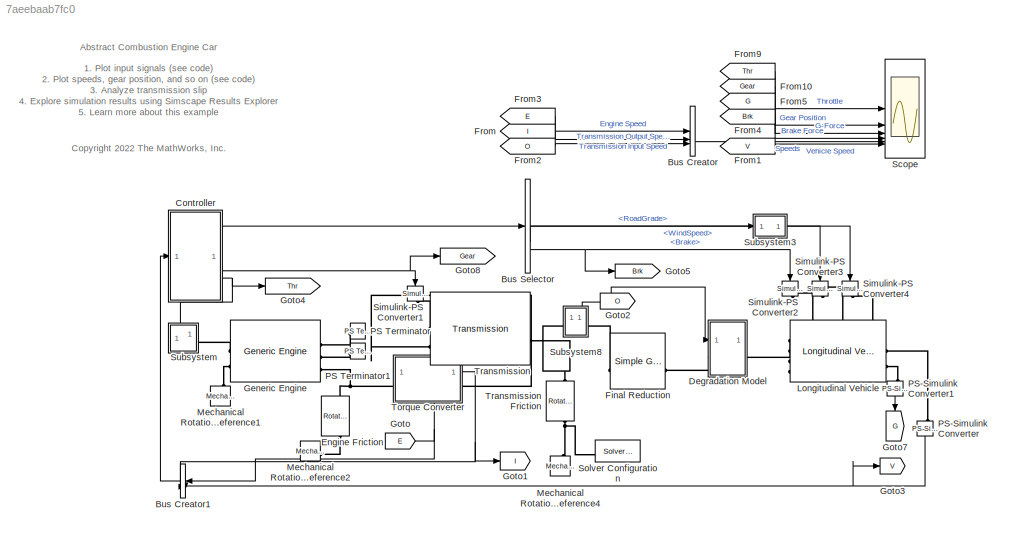
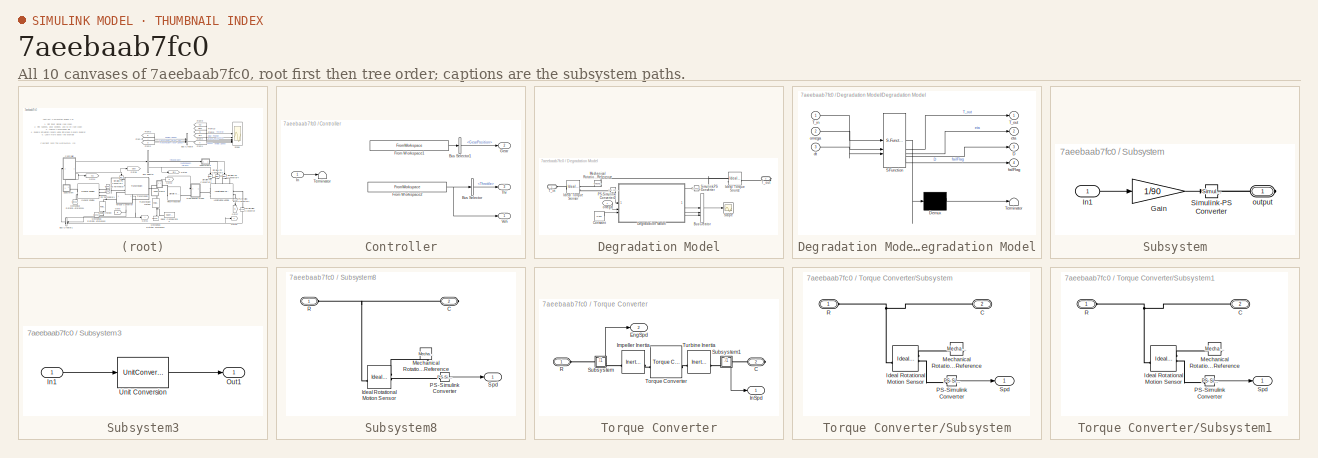
[diagram: thumbnail index - all 10 canvases of the model, root first then tree order]
MODEL slx_7aeebaab7fc0
KIND model
CONFIG AbsTol = 1e-3
CONFIG EnableMultiTasking = off
CONFIG FixedStep = 0.001
CONFIG MaxStep = 0.001
CONFIG MinStep = auto
CONFIG PreLoadFcn = AbstractCombustionEngineCarSetup
CONFIG RelTol = 1e-3
CONFIG SampleTimeConstraint = Unconstrained
CONFIG SolverName = FixedStepAuto
CONFIG StartTime = 0.0
CONFIG StopTime = 1200
BLOCK [BusCreator] Bus Creator
  DisplayOption = bar
  InheritFromInputs = on
  Inputs = 3
BLOCK [BusCreator] Bus Creator1
  DisplayOption = bar
  InheritFromInputs = on
  Inputs = 3
  NameLocation = top
BLOCK [BusSelector] Bus Selector
  OutputSignals = WindSpeed,RoadGrade,Brake
BLOCK [SubSystem] Controller
  NameLocation = top
BLOCK [BusSelector] Controller/Bus Selector
  OutputSignals = Throttle
BLOCK [BusSelector] Controller/Bus Selector1
  OutputSignals = GearPosition
BLOCK [FromWorkspace] Controller/From Workspace1
  AttributesFormatString = Interpolate: %<Interpolate>
  Interpolate = off
  NameLocation = left
  OutputAfterFinalValue = Holding final value
  VariableName = FromWS1_Signal
BLOCK [FromWorkspace] Controller/From Workspace2
  AttributesFormatString = Interpolate: %<Interpolate>
  NameLocation = left
  OutDataTypeStr = Bus: AbstractCombustionEngineCar_Bus
  OutputAfterFinalValue = Holding final value
  VariableName = FromWS2_Signal
BLOCK [Outport] Controller/Gear
  NameLocation = right
  Port = 2
BLOCK [Inport] Controller/In
BLOCK [Terminator] Controller/Terminator
BLOCK [Outport] Controller/Thr
  NameLocation = right
  Port = 3
BLOCK [Outport] Controller/Veh
  NameLocation = right
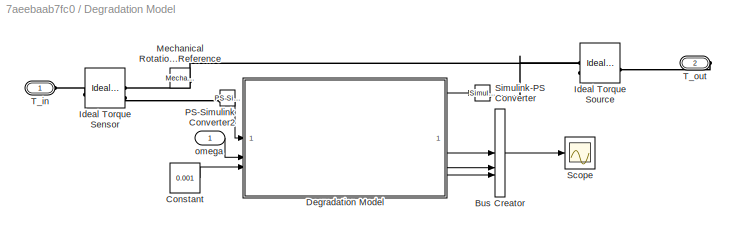
BLOCK [SubSystem] Degradation Model
BLOCK [BusCreator] Degradation Model/Bus Creator
  DisplayOption = bar
  InheritFromInputs = on
  Inputs = 3
BLOCK [Constant] Degradation Model/Constant
  Value = 0.001
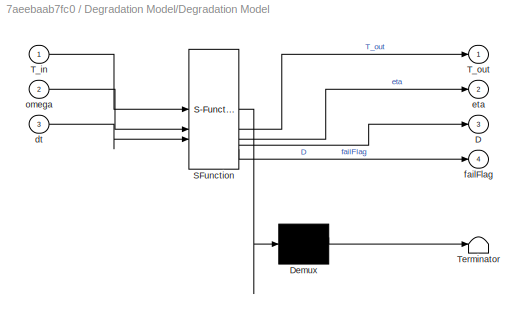
BLOCK [SubSystem] Degradation Model/Degradation Model
  ErrorFcn = Stateflow.Translate.translate
  PermitHierarchicalResolution = ExplicitOnly
  SFBlockType = MATLAB Function
  ShowPortLabels = FromPortBlockName
  TreatAsAtomicUnit = on
BLOCK [Demux] Degradation Model/Degradation Model/ Demux 
  Outputs = 1
BLOCK [S-Function] Degradation Model/Degradation Model/ SFunction 
  EnableBusSupport = off
  FunctionName = sf_sfun
  PortCounts = [3 5]
  SFcnIsStateOwnerBlock = off
  SFunctionDeploymentMode = off
  Tag = Stateflow S-Function 2
BLOCK [Terminator] Degradation Model/Degradation Model/ Terminator 
BLOCK [Outport] Degradation Model/Degradation Model/D
  Port = 3
BLOCK [Inport] Degradation Model/Degradation Model/T_in
BLOCK [Outport] Degradation Model/Degradation Model/T_out
BLOCK [Inport] Degradation Model/Degradation Model/dt
  Port = 3
BLOCK [Outport] Degradation Model/Degradation Model/eta
  Port = 2
BLOCK [Outport] Degradation Model/Degradation Model/failFlag
  Port = 4
BLOCK [Inport] Degradation Model/Degradation Model/omega
  Port = 2
BLOCK [Reference] Degradation Model/Ideal Torque Sensor  REF=fl_lib/Mechanical/Mechanical Sensors/Ideal Torque Sensor
  SourceBlock = fl_lib/Mechanical/Mechanical Sensors/Ideal Torque Sensor
  SourceType = Ideal Torque Sensor
BLOCK [Reference] Degradation Model/Ideal Torque Source  REF=fl_lib/Mechanical/Mechanical Sources/Ideal Torque Source
  SourceBlock = fl_lib/Mechanical/Mechanical Sources/Ideal Torque Source
  SourceType = Ideal Torque Source
BLOCK [Reference] Degradation Model/Mechanical Rotational Reference  REF=fl_lib/Mechanical/Rotational Elements/Mechanical
Rotational Reference
  NameLocation = top
  SourceBlock = fl_lib/Mechanical/Rotational Elements/Mechanical\nRotational Reference
  SourceType = Mechanical\nRotational Reference
BLOCK [Reference] Degradation Model/PS-Simulink Converter2  REF=nesl_utility/PS-Simulink
Converter
  SourceBlock = nesl_utility/PS-Simulink\nConverter
  SourceType = PS-Simulink\nConverter
BLOCK [Scope] Degradation Model/Scope
  DataLoggingVariableName = ScopeData1
  Floating = off
  GraphicalSettings = {"GraphicalSettings":{"LegacySettings":true,"Style":{"Style":{"PlotType":"Auto"}}}}
  NumInputPorts = 1
  WasSavedAsWebScope = on
BLOCK [Reference] Degradation Model/Simulink-PS Converter  REF=nesl_utility/Simulink-PS
Converter
  SourceBlock = nesl_utility/Simulink-PS\nConverter
  SourceType = Simulink-PS\nConverter
BLOCK [PMIOPort] Degradation Model/T_in
  Side = Left
BLOCK [PMIOPort] Degradation Model/T_out
  NameLocation = top
  Port = 2
  Side = Right
BLOCK [Inport] Degradation Model/omega
BLOCK [Reference] Engine Friction  REF=fl_lib/Mechanical/Rotational Elements/Rotational Damper
  NameLocation = left
  SourceBlock = fl_lib/Mechanical/Rotational Elements/Rotational Damper
  SourceType = Rotational Damper
BLOCK [Reference] Final Reduction  REF=sdl_lib/Gears/Simple Gear
  AttributesFormatString = %<ratio>
  SourceBlock = sdl_lib/Gears/Simple Gear
  SourceType = Simple Gear
BLOCK [From] From
  GotoTag = I
  NameLocation = left
BLOCK [From] From1
  GotoTag = V
  NameLocation = left
BLOCK [From] From10
  GotoTag = Gear
  NameLocation = left
BLOCK [From] From2
  GotoTag = O
  NameLocation = left
BLOCK [From] From3
  GotoTag = E
  NameLocation = left
BLOCK [From] From4
  GotoTag = Brk
BLOCK [From] From5
  GotoTag = G
BLOCK [From] From9
  GotoTag = Thr
  NameLocation = left
BLOCK [Reference] Generic Engine  REF=sdl_lib/Engines & Motors/Generic Engine
  SourceBlock = sdl_lib/Engines & Motors/Generic Engine
  SourceType = Generic Engine
BLOCK [Goto] Goto
  GotoTag = E
BLOCK [Goto] Goto1
  GotoTag = I
BLOCK [Goto] Goto2
  GotoTag = O
  NameLocation = left
BLOCK [Goto] Goto3
  GotoTag = V
BLOCK [Goto] Goto4
  GotoTag = Thr
BLOCK [Goto] Goto5
  GotoTag = Brk
BLOCK [Goto] Goto7
  GotoTag = G
  NameLocation = left
BLOCK [Goto] Goto8
  GotoTag = Gear
BLOCK [Reference] Longitudinal Vehicle  REF=sdl_lib/Tires & Vehicles/Longitudinal Vehicle
  SourceBlock = sdl_lib/Tires & Vehicles/Longitudinal Vehicle
  SourceType = Longitudinal Vehicle
BLOCK [Reference] Mechanical Rotational Reference1  REF=fl_lib/Mechanical/Rotational Elements/Mechanical
Rotational Reference
  SourceBlock = fl_lib/Mechanical/Rotational Elements/Mechanical\nRotational Reference
  SourceType = Mechanical\nRotational Reference
BLOCK [Reference] Mechanical Rotational Reference2  REF=fl_lib/Mechanical/Rotational Elements/Mechanical
Rotational Reference
  NameLocation = left
  SourceBlock = fl_lib/Mechanical/Rotational Elements/Mechanical\nRotational Reference
  SourceType = Mechanical\nRotational Reference
BLOCK [Reference] Mechanical Rotational Reference4  REF=fl_lib/Mechanical/Rotational Elements/Mechanical
Rotational Reference
  NameLocation = right
  SourceBlock = fl_lib/Mechanical/Rotational Elements/Mechanical\nRotational Reference
  SourceType = Mechanical\nRotational Reference
BLOCK [Reference] PS Terminator  REF=fl_lib/Physical Signals/Sinks/PS Terminator
  SourceBlock = fl_lib/Physical Signals/Sinks/PS Terminator
  SourceType = PS Terminator
BLOCK [Reference] PS Terminator1  REF=fl_lib/Physical Signals/Sinks/PS Terminator
  SourceBlock = fl_lib/Physical Signals/Sinks/PS Terminator
  SourceType = PS Terminator
BLOCK [Reference] PS-Simulink Converter  REF=nesl_utility/PS-Simulink
Converter
  NameLocation = left
  SourceBlock = nesl_utility/PS-Simulink\nConverter
  SourceType = PS-Simulink\nConverter
BLOCK [Reference] PS-Simulink Converter1  REF=nesl_utility/PS-Simulink
Converter
  AttributesFormatString = %<Unit>
  NameLocation = left
  SourceBlock = nesl_utility/PS-Simulink\nConverter
  SourceType = PS-Simulink\nConverter
BLOCK [Scope] Scope
  ActiveDisplayYMaximum = 101.25
  ActiveDisplayYMinimum = -11.25
  Floating = off
  GraphicalSettings = {"GraphicalSettings":{"LegacySettings":true,"Style":{"AxesScalingProperties":{"AxesScaling":"Auto","ShrinkYLimits":false},"Style":{"AxesColor":"[0 0 0]","ChannelNames":["","","","","",""],"ColorOrder":"[1 1 0.0666666666666667;0.0745098039215686 0.623529411764706 1;1 0.411764705882353 0.16078431372549;0.392156862745098 0.831372549019608 0.0745098039215686;0.717647058823529 0.274509803921569 1;0.058...<+573ch>
  LayoutDimensionsString = [3 2]
  MultipleDisplayCache = [{"MaxYLimMag":101.25,"MaxYLimReal":101.25,"MinYLimMag":0,"MinYLimReal":-11.25,"PlotAsMagnitudePhase":false,"ShowGrid":true,"ShowLegend":false,"Title":"%<SignalLabel>","YLabel":""},{"MaxYLimMag":10,"MaxYLimReal":6.625,"MinYLimMag":0,"MinYLimReal":0.375,"PlotAsMagnitudePhase":false,"ShowGrid":true,"ShowLegend":false,"Title":"%<SignalLabel>","YLabel":""},{"MaxYLimMag":4754.86924,"MaxYLimReal":0.4140...<+680ch>
  NumInputPorts = 6
  WasSavedAsWebScope = on
  WindowPosition = [151 803 949 489]
BLOCK [Reference] Simulink-PS Converter1  REF=nesl_utility/Simulink-PS
Converter
  NameLocation = left
  SourceBlock = nesl_utility/Simulink-PS\nConverter
  SourceType = Simulink-PS\nConverter
BLOCK [Reference] Simulink-PS Converter2  REF=nesl_utility/Simulink-PS
Converter
  NameLocation = left
  SourceBlock = nesl_utility/Simulink-PS\nConverter
  SourceType = Simulink-PS\nConverter
BLOCK [Reference] Simulink-PS Converter3  REF=nesl_utility/Simulink-PS
Converter
  NameLocation = left
  SourceBlock = nesl_utility/Simulink-PS\nConverter
  SourceType = Simulink-PS\nConverter
BLOCK [Reference] Simulink-PS Converter4  REF=nesl_utility/Simulink-PS
Converter
  NameLocation = left
  SourceBlock = nesl_utility/Simulink-PS\nConverter
  SourceType = Simulink-PS\nConverter
BLOCK [Reference] Solver Configuration  REF=nesl_utility/Solver
Configuration
  AttributesFormatString = Local solver = %<UseLocalSolver>
  SourceBlock = nesl_utility/Solver\nConfiguration
  SourceType = Solver\nConfiguration
BLOCK [SubSystem] Subsystem
  PortSchema = {"entries":[{"content":{"sides":[{"content":{"connectorIds":[]},"type":"ConnectorPlacement.EquallySpacedRectSide","uuid":"38476285-4b1d-4cfe-b9ba-56388b6e142d"},{"content":{"connectorIds":["RConn1"],"side":"RIGHT"},"type":"ConnectorPlacement.EquallySpacedRectSide","uuid":"ba0e92dd-90b0-4ff2-bfbd-3d18e117ce00"},{"content":{"connectorIds":["In1"],"side":"TOP"},"type":"ConnectorPlacement.EquallySpace...<+242ch>
  ShowPortLabels = none
BLOCK [Gain] Subsystem/Gain
  Gain = 1/90
BLOCK [Inport] Subsystem/In1
BLOCK [Reference] Subsystem/Simulink-PS Converter  REF=nesl_utility/Simulink-PS
Converter
  AttributesFormatString = %<Unit>
  SourceBlock = nesl_utility/Simulink-PS\nConverter
  SourceType = Simulink-PS\nConverter
BLOCK [PMIOPort] Subsystem/output
  Side = Right
BLOCK [SubSystem] Subsystem3
  ShowPortLabels = none
BLOCK [Inport] Subsystem3/In1
BLOCK [Outport] Subsystem3/Out1
BLOCK [UnitConversion] Subsystem3/Unit Conversion
BLOCK [SubSystem] Subsystem8
  PortSchema = {"entries":[{"content":{"sides":[{"content":{"connectorIds":["Out1","LConn1"]},"type":"ConnectorPlacement.EquallySpacedRectSide","uuid":"a87ce211-5ca3-4dba-a83b-da94e949f171"},{"content":{"connectorIds":["RConn1"],"side":"RIGHT"},"type":"ConnectorPlacement.EquallySpacedRectSide","uuid":"788867ba-271d-48ee-bf4b-70614e75db20"},{"content":{"connectorIds":[],"side":"TOP"},"type":"ConnectorPlacement.Eq...<+396ch>
  ShowPortLabels = none
BLOCK [PMIOPort] Subsystem8/C
  Port = 2
  Side = Right
BLOCK [Reference] Subsystem8/Ideal Rotational Motion Sensor  REF=fl_lib/Mechanical/Mechanical Sensors/Ideal Rotational
Motion Sensor
  SourceBlock = fl_lib/Mechanical/Mechanical Sensors/Ideal Rotational\nMotion Sensor
  SourceType = Ideal Rotational\nMotion Sensor
BLOCK [Reference] Subsystem8/Mechanical Rotational Reference  REF=fl_lib/Mechanical/Rotational Elements/Mechanical
Rotational Reference
  NameLocation = left
  SourceBlock = fl_lib/Mechanical/Rotational Elements/Mechanical\nRotational Reference
  SourceType = Mechanical\nRotational Reference
BLOCK [Reference] Subsystem8/PS-Simulink Converter  REF=nesl_utility/PS-Simulink
Converter
  AttributesFormatString = %<Unit>
  SourceBlock = nesl_utility/PS-Simulink\nConverter
  SourceType = PS-Simulink\nConverter
BLOCK [PMIOPort] Subsystem8/R
  Side = Left
BLOCK [Outport] Subsystem8/Spd
  Unit = rpm
BLOCK [SubSystem] Torque Converter
  PortSchema = {"entries":[{"content":{"sides":[{"content":{"connectorIds":["LConn1","Out2"]},"type":"ConnectorPlacement.EquallySpacedRectSide","uuid":"617538e0-3440-487d-b133-1f4231421eb5"},{"content":{"connectorIds":["RConn1","Out1"],"side":"RIGHT"},"type":"ConnectorPlacement.EquallySpacedRectSide","uuid":"0cc25c53-6bfd-4172-944f-9e7138ffc800"},{"content":{"connectorIds":[],"side":"TOP"},"type":"ConnectorPlace...<+403ch>
BLOCK [PMIOPort] Torque Converter/C
  Port = 2
  Side = Right
BLOCK [Outport] Torque Converter/EngSpd
  Port = 2
BLOCK [Reference] Torque Converter/Impeller Inertia  REF=fl_lib/Mechanical/Rotational Elements/Inertia
  NameLocation = top
  SourceBlock = fl_lib/Mechanical/Rotational Elements/Inertia
  SourceType = Inertia
BLOCK [Outport] Torque Converter/InSpd
BLOCK [PMIOPort] Torque Converter/R
  Side = Left
BLOCK [SubSystem] Torque Converter/Subsystem
  PortSchema = {"entries":[{"content":{"sides":[{"content":{"connectorIds":["LConn1"]},"type":"ConnectorPlacement.EquallySpacedRectSide","uuid":"a87ce211-5ca3-4dba-a83b-da94e949f171"},{"content":{"connectorIds":["RConn1"],"side":"RIGHT"},"type":"ConnectorPlacement.EquallySpacedRectSide","uuid":"788867ba-271d-48ee-bf4b-70614e75db20"},{"content":{"connectorIds":["Out1"],"side":"TOP"},"type":"ConnectorPlacement.Equ...<+251ch>
  ShowPortLabels = none
BLOCK [PMIOPort] Torque Converter/Subsystem/C
  Port = 2
  Side = Right
BLOCK [Reference] Torque Converter/Subsystem/Ideal Rotational Motion Sensor  REF=fl_lib/Mechanical/Mechanical Sensors/Ideal Rotational
Motion Sensor
  SourceBlock = fl_lib/Mechanical/Mechanical Sensors/Ideal Rotational\nMotion Sensor
  SourceType = Ideal Rotational\nMotion Sensor
BLOCK [Reference] Torque Converter/Subsystem/Mechanical Rotational Reference  REF=fl_lib/Mechanical/Rotational Elements/Mechanical
Rotational Reference
  NameLocation = top
  SourceBlock = fl_lib/Mechanical/Rotational Elements/Mechanical\nRotational Reference
  SourceType = Mechanical\nRotational Reference
BLOCK [Reference] Torque Converter/Subsystem/PS-Simulink Converter  REF=nesl_utility/PS-Simulink
Converter
  AttributesFormatString = %<Unit>
  SourceBlock = nesl_utility/PS-Simulink\nConverter
  SourceType = PS-Simulink\nConverter
BLOCK [PMIOPort] Torque Converter/Subsystem/R
  Side = Left
BLOCK [Outport] Torque Converter/Subsystem/Spd
  Unit = rpm
BLOCK [SubSystem] Torque Converter/Subsystem1
  PortSchema = {"entries":[{"content":{"sides":[{"content":{"connectorIds":["LConn1"]},"type":"ConnectorPlacement.EquallySpacedRectSide","uuid":"a87ce211-5ca3-4dba-a83b-da94e949f171"},{"content":{"connectorIds":["RConn1"],"side":"RIGHT"},"type":"ConnectorPlacement.EquallySpacedRectSide","uuid":"788867ba-271d-48ee-bf4b-70614e75db20"},{"content":{"connectorIds":[],"side":"TOP"},"type":"ConnectorPlacement.EquallySp...<+395ch>
  ShowPortLabels = none
BLOCK [PMIOPort] Torque Converter/Subsystem1/C
  Port = 2
  Side = Right
BLOCK [Reference] Torque Converter/Subsystem1/Ideal Rotational Motion Sensor  REF=fl_lib/Mechanical/Mechanical Sensors/Ideal Rotational
Motion Sensor
  SourceBlock = fl_lib/Mechanical/Mechanical Sensors/Ideal Rotational\nMotion Sensor
  SourceType = Ideal Rotational\nMotion Sensor
BLOCK [Reference] Torque Converter/Subsystem1/Mechanical Rotational Reference  REF=fl_lib/Mechanical/Rotational Elements/Mechanical
Rotational Reference
  NameLocation = top
  SourceBlock = fl_lib/Mechanical/Rotational Elements/Mechanical\nRotational Reference
  SourceType = Mechanical\nRotational Reference
BLOCK [Reference] Torque Converter/Subsystem1/PS-Simulink Converter  REF=nesl_utility/PS-Simulink
Converter
  AttributesFormatString = %<Unit>
  SourceBlock = nesl_utility/PS-Simulink\nConverter
  SourceType = PS-Simulink\nConverter
BLOCK [PMIOPort] Torque Converter/Subsystem1/R
  Side = Left
BLOCK [Outport] Torque Converter/Subsystem1/Spd
  Unit = rpm
BLOCK [Reference] Torque Converter/Torque Converter  REF=sdl_lib/Couplings & Drives/Torque Converter
  SourceBlock = sdl_lib/Couplings & Drives/Torque Converter
  SourceType = Torque Converter
BLOCK [Reference] Torque Converter/Turbine Inertia  REF=fl_lib/Mechanical/Rotational Elements/Inertia
  NameLocation = top
  SourceBlock = fl_lib/Mechanical/Rotational Elements/Inertia
  SourceType = Inertia
BLOCK [Reference] Transmission  REF=sdl_lib/Gears/Transmission
  NameLocation = top
  SourceBlock = sdl_lib/Gears/Transmission
  SourceType = Transmission
BLOCK [Reference] Transmission Friction  REF=fl_lib/Mechanical/Rotational Elements/Rotational Damper
  NameLocation = left
  SourceBlock = fl_lib/Mechanical/Rotational Elements/Rotational Damper
  SourceType = Rotational Damper
ANNOTATION (root): 1. Plot input signals (see code) 2. Plot speeds, gear position, and so on (see code) 3. Analyze transmission slip 4. Explore simulation results using Simscape Results Explorer 5. Learn more about this example
ANNOTATION (root): <copyright redacted>
ANNOTATION (root): Abstract Combustion Engine Car
LINE Bus Creator1:1 -> Controller:1
LINE Bus Creator:1 -> Scope:5
LINE Bus Selector:1 -> Simulink-PS Converter4:1
LINE Bus Selector:2 -> Subsystem3:1
NET Bus Selector:3 -> Goto5:1, Simulink-PS Converter2:1
LINE Controller/Bus Selector1:1 -> Controller/Gear:1
LINE Controller/Bus Selector:1 -> Controller/Thr:1
LINE Controller/From Workspace1:1 -> Controller/Bus Selector1:1
NET Controller/From Workspace2:1 -> Controller/Bus Selector:1, Controller/Veh:1
LINE Controller/In:1 -> Controller/Terminator:1
LINE Controller:1 -> Bus Selector:1
NET Controller:2 -> Goto8:1, Simulink-PS Converter1:1
NET Controller:3 -> Goto4:1, Subsystem:1
LINE Degradation Model/Bus Creator:1 -> Degradation Model/Scope:1
LINE Degradation Model/Constant:1 -> Degradation Model/Degradation Model:3
LINE Degradation Model/Degradation Model:1 -> Degradation Model/Simulink-PS Converter:1
LINE Degradation Model/Degradation Model:2 -> Degradation Model/Bus Creator:1
LINE Degradation Model/Degradation Model:3 -> Degradation Model/Bus Creator:2
LINE Degradation Model/Degradation Model:4 -> Degradation Model/Bus Creator:3
LINE Degradation Model/PS-Simulink Converter2:1 -> Degradation Model/Degradation Model:1
LINE Degradation Model/omega:1 -> Degradation Model/Degradation Model:2
LINE From10:1 -> Scope:2
LINE From1:1 -> Scope:6
LINE From2:1 -> Bus Creator:3
LINE From3:1 -> Bus Creator:1
LINE From4:1 -> Scope:4
LINE From5:1 -> Scope:3
LINE From9:1 -> Scope:1
LINE From:1 -> Bus Creator:2
LINE PS-Simulink Converter1:1 -> Goto7:1
NET PS-Simulink Converter:1 -> Bus Creator1:3, Goto3:1
LINE Subsystem/Gain:1 -> Subsystem/Simulink-PS Converter:1
LINE Subsystem/In1:1 -> Subsystem/Gain:1
LINE Subsystem3/In1:1 -> Subsystem3/Unit Conversion:1
LINE Subsystem3/Unit Conversion:1 -> Subsystem3/Out1:1
LINE Subsystem3:1 -> Simulink-PS Converter3:1
LINE Subsystem8/PS-Simulink Converter:1 -> Subsystem8/Spd:1
NET Subsystem8:1 -> Degradation Model:1, Goto2:1
LINE Torque Converter/Subsystem/PS-Simulink Converter:1 -> Torque Converter/Subsystem/Spd:1
LINE Torque Converter/Subsystem1/PS-Simulink Converter:1 -> Torque Converter/Subsystem1/Spd:1
LINE Torque Converter/Subsystem1:1 -> Torque Converter/InSpd:1
LINE Torque Converter/Subsystem:1 -> Torque Converter/EngSpd:1
NET Torque Converter:1 -> Bus Creator1:2, Goto1:1
NET Torque Converter:2 -> Bus Creator1:1, Goto:1
PLINE Degradation Model/Ideal Torque Sensor:LConn1 -- Degradation Model/T_in:RConn1
PNET net1: Degradation Model/Ideal Torque Sensor:RConn1 -- Degradation Model/Ideal Torque Source:RConn2 -- Degradation Model/Mechanical Rotational Reference:LConn1
PLINE Degradation Model/Ideal Torque Sensor:RConn2 -- Degradation Model/PS-Simulink Converter2:LConn1
PLINE Degradation Model/Ideal Torque Source:LConn1 -- Degradation Model/T_out:RConn1
PLINE Degradation Model/Ideal Torque Source:RConn1 -- Degradation Model/Simulink-PS Converter:RConn1
PLINE Degradation Model:LConn1 -- Final Reduction:RConn1
PLINE Degradation Model:RConn1 -- Longitudinal Vehicle:LConn1
PNET net2: Engine Friction:LConn1 -- Generic Engine:RConn3 -- Torque Converter:LConn1
PLINE Engine Friction:RConn1 -- Mechanical Rotational Reference2:LConn1
PLINE Final Reduction:LConn1 -- Subsystem8:RConn1
PLINE Generic Engine:LConn1 -- Subsystem:RConn1
PLINE Generic Engine:LConn2 -- Mechanical Rotational Reference1:LConn1
PLINE Generic Engine:RConn1 -- PS Terminator:LConn1
PLINE Generic Engine:RConn2 -- PS Terminator1:LConn1
PLINE Longitudinal Vehicle:LConn2 -- Simulink-PS Converter2:RConn1
PLINE Longitudinal Vehicle:LConn3 -- Simulink-PS Converter3:RConn1
PLINE Longitudinal Vehicle:LConn4 -- Simulink-PS Converter4:RConn1
PLINE Longitudinal Vehicle:RConn1 -- PS-Simulink Converter:LConn1
PLINE Longitudinal Vehicle:RConn2 -- PS-Simulink Converter1:LConn1
PNET net3: Mechanical Rotational Reference4:LConn1 -- Solver Configuration:RConn1 -- Transmission Friction:RConn1
PLINE Simulink-PS Converter1:RConn1 -- Transmission:LConn1
PLINE Subsystem/Simulink-PS Converter:RConn1 -- Subsystem/output:RConn1
PNET net4: Subsystem8/C:RConn1 -- Subsystem8/Ideal Rotational Motion Sensor:LConn1 -- Subsystem8/R:RConn1
PLINE Subsystem8/Ideal Rotational Motion Sensor:RConn1 -- Subsystem8/Mechanical Rotational Reference:LConn1
PLINE Subsystem8/Ideal Rotational Motion Sensor:RConn2 -- Subsystem8/PS-Simulink Converter:LConn1
PNET net5: Subsystem8:LConn1 -- Transmission Friction:LConn1 -- Transmission:RConn1
PLINE Torque Converter/C:RConn1 -- Torque Converter/Subsystem1:RConn1
PLINE Torque Converter/Impeller Inertia:LConn1 -- Torque Converter/Torque Converter:LConn1
PLINE Torque Converter/Impeller Inertia:RConn1 -- Torque Converter/Subsystem:RConn1
PLINE Torque Converter/R:RConn1 -- Torque Converter/Subsystem:LConn1
PNET net6: Torque Converter/Subsystem/C:RConn1 -- Torque Converter/Subsystem/Ideal Rotational Motion Sensor:LConn1 -- Torque Converter/Subsystem/R:RConn1
PLINE Torque Converter/Subsystem/Ideal Rotational Motion Sensor:RConn1 -- Torque Converter/Subsystem/Mechanical Rotational Reference:LConn1
PLINE Torque Converter/Subsystem/Ideal Rotational Motion Sensor:RConn2 -- Torque Converter/Subsystem/PS-Simulink Converter:LConn1
PNET net7: Torque Converter/Subsystem1/C:RConn1 -- Torque Converter/Subsystem1/Ideal Rotational Motion Sensor:LConn1 -- Torque Converter/Subsystem1/R:RConn1
PLINE Torque Converter/Subsystem1/Ideal Rotational Motion Sensor:RConn1 -- Torque Converter/Subsystem1/Mechanical Rotational Reference:LConn1
PLINE Torque Converter/Subsystem1/Ideal Rotational Motion Sensor:RConn2 -- Torque Converter/Subsystem1/PS-Simulink Converter:LConn1
PLINE Torque Converter/Subsystem1:LConn1 -- Torque Converter/Turbine Inertia:LConn1
PLINE Torque Converter/Torque Converter:RConn1 -- Torque Converter/Turbine Inertia:RConn1
PLINE Torque Converter:RConn1 -- Transmission:LConn2
note: NET lines group one-source signal fan-out (src -> all destinations, sorted); 1:1 wires keep LINE; PNET lines group multi-terminal physical nets as a canonical sorted terminal list (undirected conserving connections); 2-terminal nets keep the pairwise PLINE form
CHART Degradation Model/Degradation Model states=1 transitions=1
  STATE_LABEL 'eML_blk_kernel()'
  STATE_LABEL 'SCRIPT:\nfunction [T_out, eta, D, failFlag] = DegradationModel(T_in, omega, dt)\n% Inputs:\n%   T_in  - Input torque [Nm]\n%   omega - Shaft speed [rad/s]\n%   dt    - Time step [s]\n\n% Outputs:\n%   T_out    - Degraded output torque [Nm]\n%   eta      - Instantaneous efficiency [0–1]\n%   D        - Cumulative damage (0–1)\n%   failFlag - 1 if failure reached, else 0\n\n\npersistent D_prev eta_prev initialize...<+1145ch>'
CHART  states=0 transitions=0
